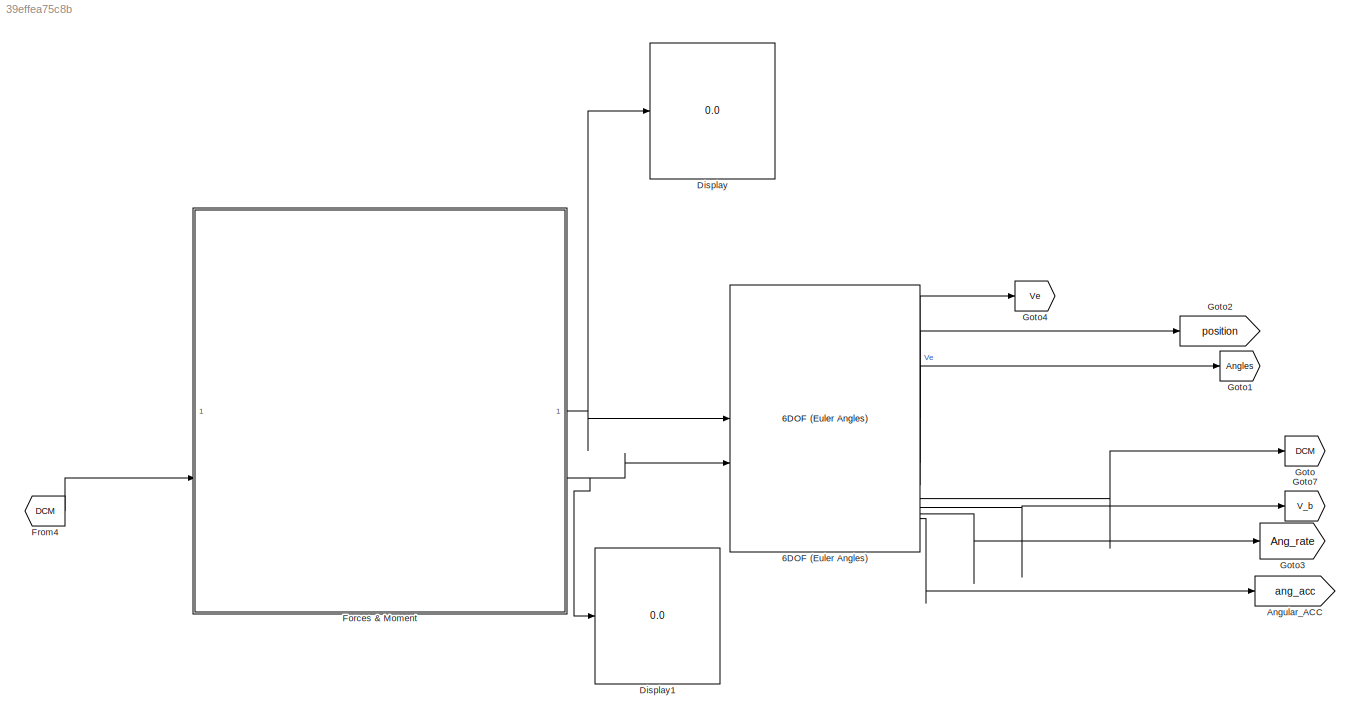
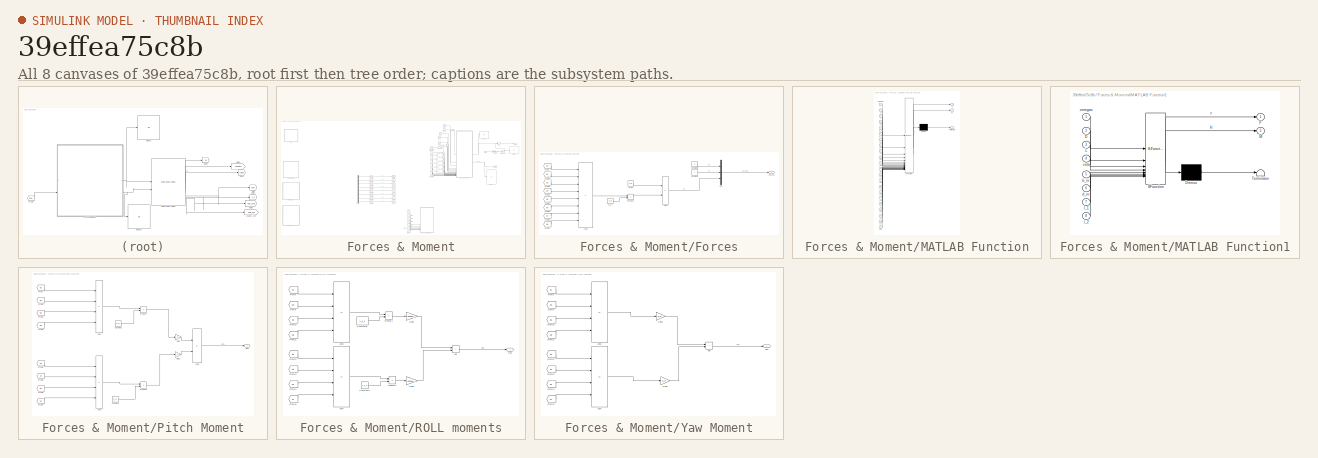
[diagram: thumbnail index - all 8 canvases of the model, root first then tree order]
MODEL slx_39effea75c8b
KIND model
CONFIG AbsTol = auto
CONFIG EnableMultiTasking = off
CONFIG FixedStep = auto
CONFIG MaxStep = auto
CONFIG MinStep = auto
CONFIG RelTol = 1e-3
CONFIG SampleTimeConstraint = Unconstrained
CONFIG SolverName = VariableStepAuto
CONFIG StartTime = 0.0
CONFIG StopTime = 10.0
BLOCK [Reference] 6DOF (Euler Angles)  REF=shared6dof/6DOF (Euler Angles)
  LibrarySourceBlock = aerolib6dof2/6DOF (Euler Angles)
  SourceBlock = shared6dof/6DOF (Euler Angles)
  SourceType = 6DOF EoM (Body Axis)
BLOCK [Goto] Angular_ACC
  GotoTag = ang_acc
  TagVisibility = global
BLOCK [Display] Display
  Decimation = 1
BLOCK [Display] Display1
  Decimation = 1
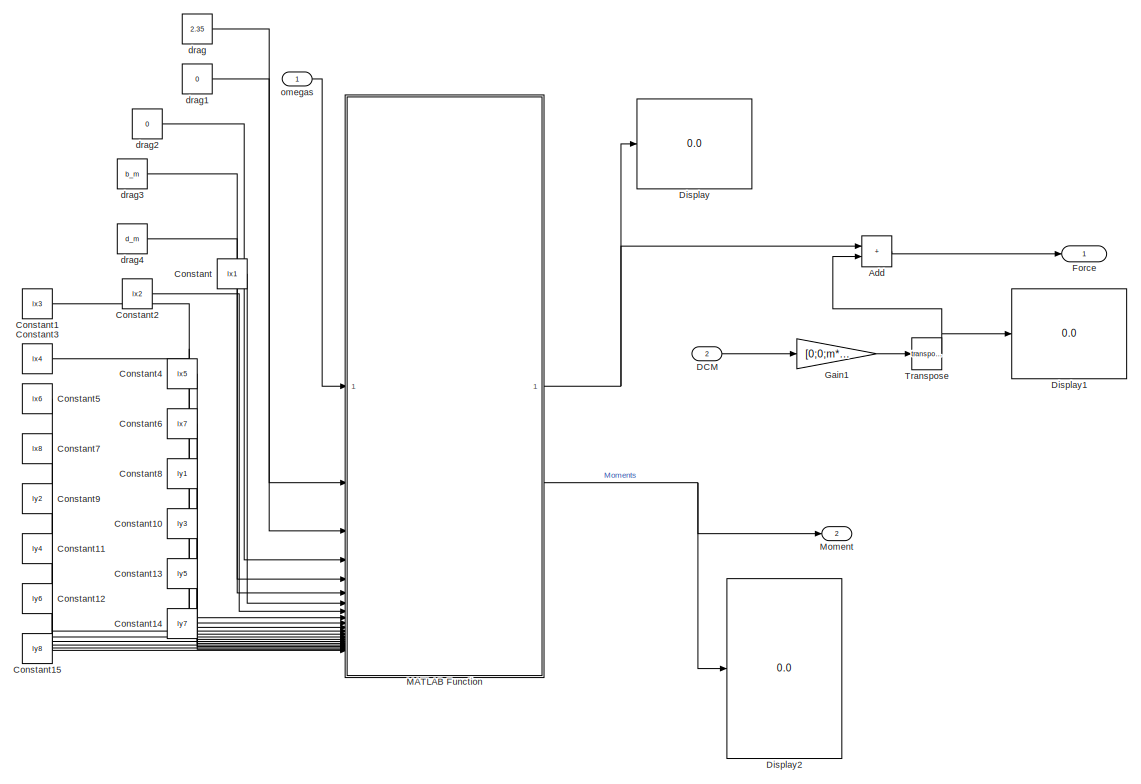
[diagram: Forces & Moment - part 1/4, top right region]
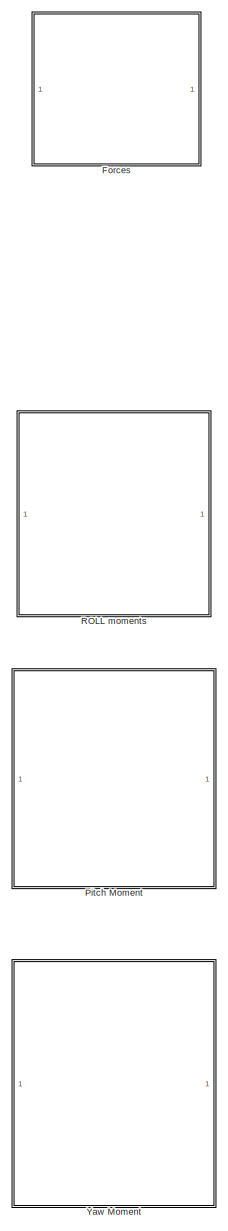
[diagram: Forces & Moment - part 2/4, left side, full height]
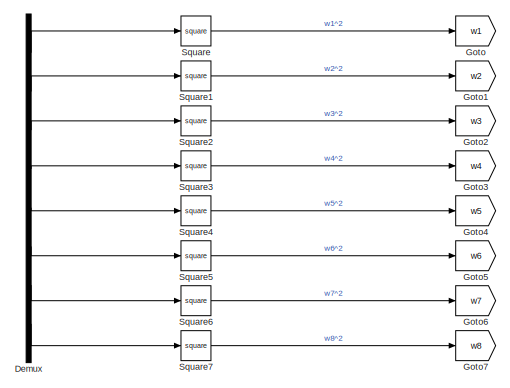
[diagram: Forces & Moment - part 3/4, central region]
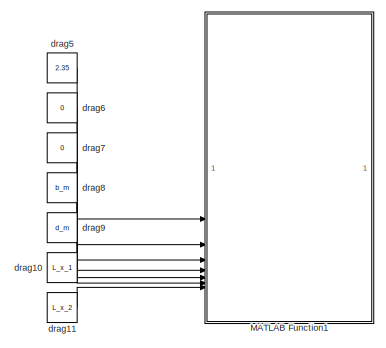
[diagram: Forces & Moment - part 4/4, bottom center region]
BLOCK [SubSystem] Forces & Moment
BLOCK [Sum] Forces & Moment/Add
  IconShape = rectangular
BLOCK [Constant] Forces & Moment/Constant
  Value = lx1
BLOCK [Constant] Forces & Moment/Constant1
  Value = lx3
BLOCK [Constant] Forces & Moment/Constant10
  Value = ly3
BLOCK [Constant] Forces & Moment/Constant11
  Value = ly4
BLOCK [Constant] Forces & Moment/Constant12
  Value = ly6
BLOCK [Constant] Forces & Moment/Constant13
  Value = ly5
BLOCK [Constant] Forces & Moment/Constant14
  Value = ly7
BLOCK [Constant] Forces & Moment/Constant15
  Value = ly8
BLOCK [Constant] Forces & Moment/Constant2
  Value = lx2
BLOCK [Constant] Forces & Moment/Constant3
  Value = lx4
BLOCK [Constant] Forces & Moment/Constant4
  Value = lx5
BLOCK [Constant] Forces & Moment/Constant5
  Value = lx6
BLOCK [Constant] Forces & Moment/Constant6
  Value = lx7
BLOCK [Constant] Forces & Moment/Constant7
  Value = lx8
BLOCK [Constant] Forces & Moment/Constant8
  Value = ly1
BLOCK [Constant] Forces & Moment/Constant9
  Value = ly2
BLOCK [Inport] Forces & Moment/DCM
  Port = 2
BLOCK [Demux] Forces & Moment/Demux
  Commented = on
  Outputs = 8
BLOCK [Display] Forces & Moment/Display
  Decimation = 1
BLOCK [Display] Forces & Moment/Display1
  Decimation = 1
BLOCK [Display] Forces & Moment/Display2
  Decimation = 1
BLOCK [Outport] Forces & Moment/Force
BLOCK [SubSystem] Forces & Moment/Forces
  Commented = on
BLOCK [Sum] Forces & Moment/Forces/Add1
  IconShape = rectangular
  Inputs = ++++++++
BLOCK [Sum] Forces & Moment/Forces/Add2
  IconShape = rectangular
  Inputs = +-
BLOCK [Constant] Forces & Moment/Forces/Constant6
  Value = 0
BLOCK [Constant] Forces & Moment/Forces/Constant7
  Value = 0
BLOCK [Outport] Forces & Moment/Forces/Forces
BLOCK [From] Forces & Moment/Forces/From
  GotoTag = w1
  TagVisibility = global
BLOCK [From] Forces & Moment/Forces/From1
  GotoTag = w2
  TagVisibility = global
BLOCK [From] Forces & Moment/Forces/From2
  GotoTag = w3
  TagVisibility = global
BLOCK [From] Forces & Moment/Forces/From3
  GotoTag = w4
  TagVisibility = global
BLOCK [From] Forces & Moment/Forces/From4
  GotoTag = w5
  TagVisibility = global
BLOCK [From] Forces & Moment/Forces/From5
  GotoTag = w6
  TagVisibility = global
BLOCK [From] Forces & Moment/Forces/From6
  GotoTag = w7
  TagVisibility = global
BLOCK [From] Forces & Moment/Forces/From7
  GotoTag = w8
  TagVisibility = global
BLOCK [Mux] Forces & Moment/Forces/Mux
  DisplayOption = bar
  Inputs = 3
BLOCK [Product] Forces & Moment/Forces/Product
BLOCK [Constant] Forces & Moment/Forces/b_m
  Value = b_m
BLOCK [Constant] Forces & Moment/Forces/drag
  Value = 2.35
BLOCK [Gain] Forces & Moment/Gain1
  Gain = [0;0;m*g]
  Multiplication = Matrix(u*K)
BLOCK [Goto] Forces & Moment/Goto
  Commented = on
  GotoTag = w1
  TagVisibility = global
BLOCK [Goto] Forces & Moment/Goto1
  Commented = on
  GotoTag = w2
  TagVisibility = global
BLOCK [Goto] Forces & Moment/Goto2
  Commented = on
  GotoTag = w3
  TagVisibility = global
BLOCK [Goto] Forces & Moment/Goto3
  Commented = on
  GotoTag = w4
  TagVisibility = global
BLOCK [Goto] Forces & Moment/Goto4
  Commented = on
  GotoTag = w5
  TagVisibility = global
BLOCK [Goto] Forces & Moment/Goto5
  Commented = on
  GotoTag = w6
  TagVisibility = global
BLOCK [Goto] Forces & Moment/Goto6
  Commented = on
  GotoTag = w7
  TagVisibility = global
BLOCK [Goto] Forces & Moment/Goto7
  Commented = on
  GotoTag = w8
  TagVisibility = global
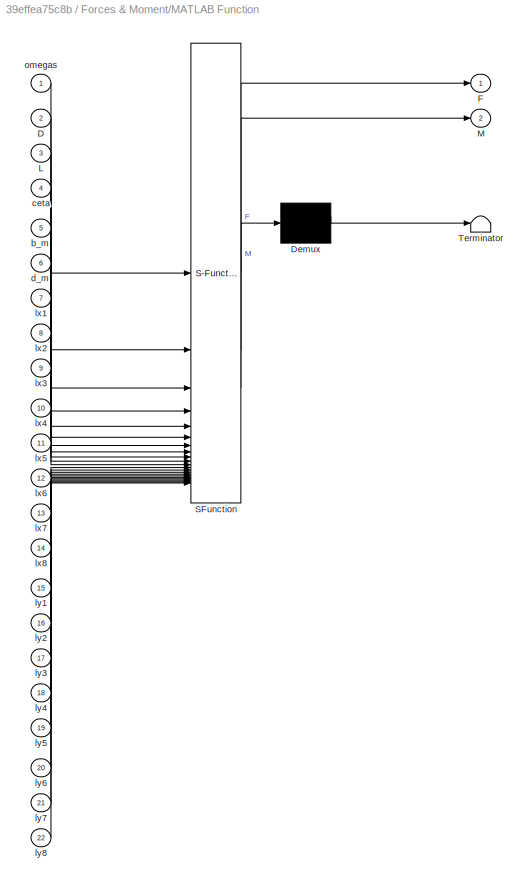
BLOCK [SubSystem] Forces & Moment/MATLAB Function
  ErrorFcn = Stateflow.Translate.translate
  LibrarySourceBlock = simulink/User-Defined\nFunctions/MATLAB Function
  PermitHierarchicalResolution = ExplicitOnly
  SFBlockType = MATLAB Function
  TreatAsAtomicUnit = on
BLOCK [Demux] Forces & Moment/MATLAB Function/ Demux 
  Outputs = 1
BLOCK [S-Function] Forces & Moment/MATLAB Function/ SFunction 
  EnableBusSupport = on
  FunctionName = sf_sfun
  PortCounts = [22 3]
  SFcnIsStateOwnerBlock = off
  SFunctionDeploymentMode = off
  Tag = Stateflow S-Function 4
BLOCK [Terminator] Forces & Moment/MATLAB Function/ Terminator 
BLOCK [Inport] Forces & Moment/MATLAB Function/D
  Port = 2
BLOCK [Outport] Forces & Moment/MATLAB Function/F
BLOCK [Inport] Forces & Moment/MATLAB Function/L
  Port = 3
BLOCK [Outport] Forces & Moment/MATLAB Function/M
  Port = 2
BLOCK [Inport] Forces & Moment/MATLAB Function/b_m
  Port = 5
BLOCK [Inport] Forces & Moment/MATLAB Function/ceta
  Port = 4
BLOCK [Inport] Forces & Moment/MATLAB Function/d_m
  Port = 6
BLOCK [Inport] Forces & Moment/MATLAB Function/lx1
  Port = 7
BLOCK [Inport] Forces & Moment/MATLAB Function/lx2
  Port = 8
BLOCK [Inport] Forces & Moment/MATLAB Function/lx3
  Port = 9
BLOCK [Inport] Forces & Moment/MATLAB Function/lx4
  Port = 10
BLOCK [Inport] Forces & Moment/MATLAB Function/lx5
  Port = 11
BLOCK [Inport] Forces & Moment/MATLAB Function/lx6
  Port = 12
BLOCK [Inport] Forces & Moment/MATLAB Function/lx7
  Port = 13
BLOCK [Inport] Forces & Moment/MATLAB Function/lx8
  Port = 14
BLOCK [Inport] Forces & Moment/MATLAB Function/ly1
  Port = 15
BLOCK [Inport] Forces & Moment/MATLAB Function/ly2
  Port = 16
BLOCK [Inport] Forces & Moment/MATLAB Function/ly3
  Port = 17
BLOCK [Inport] Forces & Moment/MATLAB Function/ly4
  Port = 18
BLOCK [Inport] Forces & Moment/MATLAB Function/ly5
  Port = 19
BLOCK [Inport] Forces & Moment/MATLAB Function/ly6
  Port = 20
BLOCK [Inport] Forces & Moment/MATLAB Function/ly7
  Port = 21
BLOCK [Inport] Forces & Moment/MATLAB Function/ly8
  Port = 22
BLOCK [Inport] Forces & Moment/MATLAB Function/omegas
BLOCK [SubSystem] Forces & Moment/MATLAB Function1
  Commented = on
  ErrorFcn = Stateflow.Translate.translate
  LibrarySourceBlock = simulink/User-Defined\nFunctions/MATLAB Function
  PermitHierarchicalResolution = ExplicitOnly
  SFBlockType = MATLAB Function
  TreatAsAtomicUnit = on
BLOCK [Demux] Forces & Moment/MATLAB Function1/ Demux 
  Outputs = 1
BLOCK [S-Function] Forces & Moment/MATLAB Function1/ SFunction 
  EnableBusSupport = off
  FunctionName = sf_sfun
  PortCounts = [8 3]
  SFcnIsStateOwnerBlock = off
  SFunctionDeploymentMode = off
  Tag = Stateflow S-Function 39
BLOCK [Terminator] Forces & Moment/MATLAB Function1/ Terminator 
BLOCK [Inport] Forces & Moment/MATLAB Function1/D
  Port = 2
BLOCK [Outport] Forces & Moment/MATLAB Function1/F
BLOCK [Inport] Forces & Moment/MATLAB Function1/L
  Port = 3
BLOCK [Outport] Forces & Moment/MATLAB Function1/M
  Port = 2
BLOCK [Inport] Forces & Moment/MATLAB Function1/b_m
  Port = 5
BLOCK [Inport] Forces & Moment/MATLAB Function1/ceta
  Port = 4
BLOCK [Inport] Forces & Moment/MATLAB Function1/d_m
  Port = 6
BLOCK [Inport] Forces & Moment/MATLAB Function1/l_1
  Port = 7
BLOCK [Inport] Forces & Moment/MATLAB Function1/l_2
  Port = 8
BLOCK [Inport] Forces & Moment/MATLAB Function1/omegas
BLOCK [Outport] Forces & Moment/Moment
  Port = 2
BLOCK [SubSystem] Forces & Moment/Pitch Moment
  Commented = on
BLOCK [Sum] Forces & Moment/Pitch Moment/Add1
  IconShape = rectangular
  Inputs = +-+-
BLOCK [Sum] Forces & Moment/Pitch Moment/Add2
  IconShape = rectangular
  Inputs = +-+-
BLOCK [Sum] Forces & Moment/Pitch Moment/Add3
  IconShape = rectangular
  Inputs = +-
BLOCK [Constant] Forces & Moment/Pitch Moment/Constant1
  Value = b_m
BLOCK [Constant] Forces & Moment/Pitch Moment/Constant2
  Value = b_m
BLOCK [From] Forces & Moment/Pitch Moment/From
  GotoTag = w1
  TagVisibility = global
BLOCK [From] Forces & Moment/Pitch Moment/From1
  GotoTag = w3
  TagVisibility = global
BLOCK [From] Forces & Moment/Pitch Moment/From2
  GotoTag = w6
  TagVisibility = global
BLOCK [From] Forces & Moment/Pitch Moment/From3
  GotoTag = w8
  TagVisibility = global
BLOCK [From] Forces & Moment/Pitch Moment/From4
  GotoTag = w2
  TagVisibility = global
BLOCK [From] Forces & Moment/Pitch Moment/From5
  GotoTag = w4
  TagVisibility = global
BLOCK [From] Forces & Moment/Pitch Moment/From6
  GotoTag = w5
  TagVisibility = global
BLOCK [From] Forces & Moment/Pitch Moment/From7
  GotoTag = w7
  TagVisibility = global
BLOCK [Gain] Forces & Moment/Pitch Moment/Gain
  Gain = L_x_1
BLOCK [Gain] Forces & Moment/Pitch Moment/Gain1
  Gain = L_x_2
BLOCK [Product] Forces & Moment/Pitch Moment/Product
BLOCK [Product] Forces & Moment/Pitch Moment/Product1
BLOCK [Outport] Forces & Moment/Pitch Moment/pitch
BLOCK [SubSystem] Forces & Moment/ROLL moments
  Commented = on
BLOCK [Sum] Forces & Moment/ROLL moments/Add
  IconShape = rectangular
BLOCK [Sum] Forces & Moment/ROLL moments/Add3
  IconShape = rectangular
  Inputs = --++
BLOCK [Sum] Forces & Moment/ROLL moments/Add4
  IconShape = rectangular
  Inputs = --++
BLOCK [Constant] Forces & Moment/ROLL moments/Constant8
  Value = L_x_1
BLOCK [Constant] Forces & Moment/ROLL moments/Constant9
  Value = L_x_2
BLOCK [From] Forces & Moment/ROLL moments/From10
  GotoTag = w6
  TagVisibility = global
BLOCK [From] Forces & Moment/ROLL moments/From11
  GotoTag = w8
  TagVisibility = global
BLOCK [From] Forces & Moment/ROLL moments/From12
  GotoTag = w2
  TagVisibility = global
BLOCK [From] Forces & Moment/ROLL moments/From13
  GotoTag = w4
  TagVisibility = global
BLOCK [From] Forces & Moment/ROLL moments/From14
  GotoTag = w5
  TagVisibility = global
BLOCK [From] Forces & Moment/ROLL moments/From15
  GotoTag = w7
  TagVisibility = global
BLOCK [From] Forces & Moment/ROLL moments/From8
  GotoTag = w1
  TagVisibility = global
BLOCK [From] Forces & Moment/ROLL moments/From9
  GotoTag = w3
  TagVisibility = global
BLOCK [Gain] Forces & Moment/ROLL moments/Gain1
  Gain = 0.0016456
BLOCK [Gain] Forces & Moment/ROLL moments/Gain2
  Gain = 0.0016456
BLOCK [Product] Forces & Moment/ROLL moments/Product1
BLOCK [Product] Forces & Moment/ROLL moments/Product2
BLOCK [Outport] Forces & Moment/ROLL moments/Roll
BLOCK [Math] Forces & Moment/Square
  Commented = on
  Operator = square
BLOCK [Math] Forces & Moment/Square1
  Commented = on
  Operator = square
BLOCK [Math] Forces & Moment/Square2
  Commented = on
  Operator = square
BLOCK [Math] Forces & Moment/Square3
  Commented = on
  Operator = square
BLOCK [Math] Forces & Moment/Square4
  Commented = on
  Operator = square
BLOCK [Math] Forces & Moment/Square5
  Commented = on
  Operator = square
BLOCK [Math] Forces & Moment/Square6
  Commented = on
  Operator = square
BLOCK [Math] Forces & Moment/Square7
  Commented = on
  Operator = square
BLOCK [Math] Forces & Moment/Transpose
  Operator = transpose
BLOCK [SubSystem] Forces & Moment/Yaw Moment
  Commented = on
BLOCK [Sum] Forces & Moment/Yaw Moment/Add
  IconShape = rectangular
BLOCK [Sum] Forces & Moment/Yaw Moment/Add3
  IconShape = rectangular
  Inputs = +--+
BLOCK [Sum] Forces & Moment/Yaw Moment/Add4
  IconShape = rectangular
  Inputs = +--+
BLOCK [From] Forces & Moment/Yaw Moment/From10
  GotoTag = w6
  TagVisibility = global
BLOCK [From] Forces & Moment/Yaw Moment/From11
  GotoTag = w8
  TagVisibility = global
BLOCK [From] Forces & Moment/Yaw Moment/From12
  GotoTag = w2
  TagVisibility = global
BLOCK [From] Forces & Moment/Yaw Moment/From13
  GotoTag = w4
  TagVisibility = global
BLOCK [From] Forces & Moment/Yaw Moment/From14
  GotoTag = w5
  TagVisibility = global
BLOCK [From] Forces & Moment/Yaw Moment/From15
  GotoTag = w7
  TagVisibility = global
BLOCK [From] Forces & Moment/Yaw Moment/From8
  GotoTag = w1
  TagVisibility = global
BLOCK [From] Forces & Moment/Yaw Moment/From9
  GotoTag = w3
  TagVisibility = global
BLOCK [Gain] Forces & Moment/Yaw Moment/Gain1
  Gain = d_m
BLOCK [Gain] Forces & Moment/Yaw Moment/Gain2
  Gain = d_m
BLOCK [Outport] Forces & Moment/Yaw Moment/Yaw
BLOCK [Constant] Forces & Moment/drag
  Value = 2.35
BLOCK [Constant] Forces & Moment/drag1
  Value = 0
BLOCK [Constant] Forces & Moment/drag10
  Commented = on
  Value = L_x_1
BLOCK [Constant] Forces & Moment/drag11
  Commented = on
  Value = L_x_2
BLOCK [Constant] Forces & Moment/drag2
  Value = 0
BLOCK [Constant] Forces & Moment/drag3
  Value = b_m
BLOCK [Constant] Forces & Moment/drag4
  Value = d_m
BLOCK [Constant] Forces & Moment/drag5
  Commented = on
  Value = 2.35
BLOCK [Constant] Forces & Moment/drag6
  Commented = on
  Value = 0
BLOCK [Constant] Forces & Moment/drag7
  Commented = on
  Value = 0
BLOCK [Constant] Forces & Moment/drag8
  Commented = on
  Value = b_m
BLOCK [Constant] Forces & Moment/drag9
  Commented = on
  Value = d_m
BLOCK [Inport] Forces & Moment/omegas
BLOCK [From] From4
  GotoTag = DCM
  TagVisibility = global
BLOCK [Goto] Goto
  GotoTag = DCM
  TagVisibility = global
BLOCK [Goto] Goto1
  GotoTag = Angles
  TagVisibility = global
BLOCK [Goto] Goto2
  GotoTag = position
  TagVisibility = global
BLOCK [Goto] Goto3
  GotoTag = Ang_rate
  TagVisibility = global
BLOCK [Goto] Goto4
  GotoTag = Ve
  TagVisibility = global
BLOCK [Goto] Goto7
  GotoTag = V_b
  TagVisibility = global
LINE 6DOF (Euler Angles):1 -> Goto4:1
LINE 6DOF (Euler Angles):2 -> Goto2:1
LINE 6DOF (Euler Angles):3 -> Goto1:1
LINE 6DOF (Euler Angles):4 -> Goto:1
LINE 6DOF (Euler Angles):5 -> Goto7:1
LINE 6DOF (Euler Angles):6 -> Goto3:1
LINE 6DOF (Euler Angles):7 -> Angular_ACC:1
LINE Forces & Moment/Add:1 -> Forces & Moment/Force:1
LINE Forces & Moment/Constant10:1 -> Forces & Moment/MATLAB Function:17
LINE Forces & Moment/Constant11:1 -> Forces & Moment/MATLAB Function:18
LINE Forces & Moment/Constant12:1 -> Forces & Moment/MATLAB Function:20
LINE Forces & Moment/Constant13:1 -> Forces & Moment/MATLAB Function:19
LINE Forces & Moment/Constant14:1 -> Forces & Moment/MATLAB Function:21
LINE Forces & Moment/Constant15:1 -> Forces & Moment/MATLAB Function:22
LINE Forces & Moment/Constant1:1 -> Forces & Moment/MATLAB Function:9
LINE Forces & Moment/Constant2:1 -> Forces & Moment/MATLAB Function:8
LINE Forces & Moment/Constant3:1 -> Forces & Moment/MATLAB Function:10
LINE Forces & Moment/Constant4:1 -> Forces & Moment/MATLAB Function:11
LINE Forces & Moment/Constant5:1 -> Forces & Moment/MATLAB Function:12
LINE Forces & Moment/Constant6:1 -> Forces & Moment/MATLAB Function:13
LINE Forces & Moment/Constant7:1 -> Forces & Moment/MATLAB Function:14
LINE Forces & Moment/Constant8:1 -> Forces & Moment/MATLAB Function:15
LINE Forces & Moment/Constant9:1 -> Forces & Moment/MATLAB Function:16
LINE Forces & Moment/Constant:1 -> Forces & Moment/MATLAB Function:7
LINE Forces & Moment/DCM:1 -> Forces & Moment/Gain1:1
LINE Forces & Moment/Demux:1 -> Forces & Moment/Square:1
LINE Forces & Moment/Demux:2 -> Forces & Moment/Square1:1
LINE Forces & Moment/Demux:3 -> Forces & Moment/Square2:1
LINE Forces & Moment/Demux:4 -> Forces & Moment/Square3:1
LINE Forces & Moment/Demux:5 -> Forces & Moment/Square4:1
LINE Forces & Moment/Demux:6 -> Forces & Moment/Square5:1
LINE Forces & Moment/Demux:7 -> Forces & Moment/Square6:1
LINE Forces & Moment/Demux:8 -> Forces & Moment/Square7:1
LINE Forces & Moment/Forces/Add1:1 -> Forces & Moment/Forces/Product:1
LINE Forces & Moment/Forces/Add2:1 -> Forces & Moment/Forces/Mux:3
LINE Forces & Moment/Forces/Constant6:1 -> Forces & Moment/Forces/Mux:1
LINE Forces & Moment/Forces/Constant7:1 -> Forces & Moment/Forces/Mux:2
LINE Forces & Moment/Forces/From1:1 -> Forces & Moment/Forces/Add1:2
LINE Forces & Moment/Forces/From2:1 -> Forces & Moment/Forces/Add1:3
LINE Forces & Moment/Forces/From3:1 -> Forces & Moment/Forces/Add1:4
LINE Forces & Moment/Forces/From4:1 -> Forces & Moment/Forces/Add1:5
LINE Forces & Moment/Forces/From5:1 -> Forces & Moment/Forces/Add1:6
LINE Forces & Moment/Forces/From6:1 -> Forces & Moment/Forces/Add1:7
LINE Forces & Moment/Forces/From7:1 -> Forces & Moment/Forces/Add1:8
LINE Forces & Moment/Forces/From:1 -> Forces & Moment/Forces/Add1:1
LINE Forces & Moment/Forces/Mux:1 -> Forces & Moment/Forces/Forces:1
LINE Forces & Moment/Forces/Product:1 -> Forces & Moment/Forces/Add2:2
LINE Forces & Moment/Forces/b_m:1 -> Forces & Moment/Forces/Product:2
LINE Forces & Moment/Forces/drag:1 -> Forces & Moment/Forces/Add2:1
LINE Forces & Moment/Gain1:1 -> Forces & Moment/Transpose:1
NET Forces & Moment/MATLAB Function:1 -> Forces & Moment/Add:1, Forces & Moment/Display:1
NET Forces & Moment/MATLAB Function:2 -> Forces & Moment/Display2:1, Forces & Moment/Moment:1
LINE Forces & Moment/Pitch Moment/Add1:1 -> Forces & Moment/Pitch Moment/Product:1
LINE Forces & Moment/Pitch Moment/Add2:1 -> Forces & Moment/Pitch Moment/Product1:1
LINE Forces & Moment/Pitch Moment/Add3:1 -> Forces & Moment/Pitch Moment/pitch:1
LINE Forces & Moment/Pitch Moment/Constant1:1 -> Forces & Moment/Pitch Moment/Product:2
LINE Forces & Moment/Pitch Moment/Constant2:1 -> Forces & Moment/Pitch Moment/Product1:2
LINE Forces & Moment/Pitch Moment/From1:1 -> Forces & Moment/Pitch Moment/Add1:2
LINE Forces & Moment/Pitch Moment/From2:1 -> Forces & Moment/Pitch Moment/Add1:3
LINE Forces & Moment/Pitch Moment/From3:1 -> Forces & Moment/Pitch Moment/Add1:4
LINE Forces & Moment/Pitch Moment/From4:1 -> Forces & Moment/Pitch Moment/Add2:1
LINE Forces & Moment/Pitch Moment/From5:1 -> Forces & Moment/Pitch Moment/Add2:2
LINE Forces & Moment/Pitch Moment/From6:1 -> Forces & Moment/Pitch Moment/Add2:3
LINE Forces & Moment/Pitch Moment/From7:1 -> Forces & Moment/Pitch Moment/Add2:4
LINE Forces & Moment/Pitch Moment/From:1 -> Forces & Moment/Pitch Moment/Add1:1
LINE Forces & Moment/Pitch Moment/Gain1:1 -> Forces & Moment/Pitch Moment/Add3:2
LINE Forces & Moment/Pitch Moment/Gain:1 -> Forces & Moment/Pitch Moment/Add3:1
LINE Forces & Moment/Pitch Moment/Product1:1 -> Forces & Moment/Pitch Moment/Gain1:1
LINE Forces & Moment/Pitch Moment/Product:1 -> Forces & Moment/Pitch Moment/Gain:1
LINE Forces & Moment/ROLL moments/Add3:1 -> Forces & Moment/ROLL moments/Product1:1
LINE Forces & Moment/ROLL moments/Add4:1 -> Forces & Moment/ROLL moments/Product2:1
LINE Forces & Moment/ROLL moments/Add:1 -> Forces & Moment/ROLL moments/Roll:1
LINE Forces & Moment/ROLL moments/Constant8:1 -> Forces & Moment/ROLL moments/Product1:2
LINE Forces & Moment/ROLL moments/Constant9:1 -> Forces & Moment/ROLL moments/Product2:2
LINE Forces & Moment/ROLL moments/From10:1 -> Forces & Moment/ROLL moments/Add3:3
LINE Forces & Moment/ROLL moments/From11:1 -> Forces & Moment/ROLL moments/Add3:4
LINE Forces & Moment/ROLL moments/From12:1 -> Forces & Moment/ROLL moments/Add4:1
LINE Forces & Moment/ROLL moments/From13:1 -> Forces & Moment/ROLL moments/Add4:2
LINE Forces & Moment/ROLL moments/From14:1 -> Forces & Moment/ROLL moments/Add4:3
LINE Forces & Moment/ROLL moments/From15:1 -> Forces & Moment/ROLL moments/Add4:4
LINE Forces & Moment/ROLL moments/From8:1 -> Forces & Moment/ROLL moments/Add3:1
LINE Forces & Moment/ROLL moments/From9:1 -> Forces & Moment/ROLL moments/Add3:2
LINE Forces & Moment/ROLL moments/Gain1:1 -> Forces & Moment/ROLL moments/Add:1
LINE Forces & Moment/ROLL moments/Gain2:1 -> Forces & Moment/ROLL moments/Add:2
LINE Forces & Moment/ROLL moments/Product1:1 -> Forces & Moment/ROLL moments/Gain1:1
LINE Forces & Moment/ROLL moments/Product2:1 -> Forces & Moment/ROLL moments/Gain2:1
LINE Forces & Moment/Square1:1 -> Forces & Moment/Goto1:1
LINE Forces & Moment/Square2:1 -> Forces & Moment/Goto2:1
LINE Forces & Moment/Square3:1 -> Forces & Moment/Goto3:1
LINE Forces & Moment/Square4:1 -> Forces & Moment/Goto4:1
LINE Forces & Moment/Square5:1 -> Forces & Moment/Goto5:1
LINE Forces & Moment/Square6:1 -> Forces & Moment/Goto6:1
LINE Forces & Moment/Square7:1 -> Forces & Moment/Goto7:1
LINE Forces & Moment/Square:1 -> Forces & Moment/Goto:1
NET Forces & Moment/Transpose:1 -> Forces & Moment/Add:2, Forces & Moment/Display1:1
LINE Forces & Moment/Yaw Moment/Add3:1 -> Forces & Moment/Yaw Moment/Gain1:1
LINE Forces & Moment/Yaw Moment/Add4:1 -> Forces & Moment/Yaw Moment/Gain2:1
LINE Forces & Moment/Yaw Moment/Add:1 -> Forces & Moment/Yaw Moment/Yaw:1
LINE Forces & Moment/Yaw Moment/From10:1 -> Forces & Moment/Yaw Moment/Add3:3
LINE Forces & Moment/Yaw Moment/From11:1 -> Forces & Moment/Yaw Moment/Add3:4
LINE Forces & Moment/Yaw Moment/From12:1 -> Forces & Moment/Yaw Moment/Add4:1
LINE Forces & Moment/Yaw Moment/From13:1 -> Forces & Moment/Yaw Moment/Add4:2
LINE Forces & Moment/Yaw Moment/From14:1 -> Forces & Moment/Yaw Moment/Add4:3
LINE Forces & Moment/Yaw Moment/From15:1 -> Forces & Moment/Yaw Moment/Add4:4
LINE Forces & Moment/Yaw Moment/From8:1 -> Forces & Moment/Yaw Moment/Add3:1
LINE Forces & Moment/Yaw Moment/From9:1 -> Forces & Moment/Yaw Moment/Add3:2
LINE Forces & Moment/Yaw Moment/Gain1:1 -> Forces & Moment/Yaw Moment/Add:1
LINE Forces & Moment/Yaw Moment/Gain2:1 -> Forces & Moment/Yaw Moment/Add:2
LINE Forces & Moment/drag10:1 -> Forces & Moment/MATLAB Function1:7
LINE Forces & Moment/drag11:1 -> Forces & Moment/MATLAB Function1:8
LINE Forces & Moment/drag1:1 -> Forces & Moment/MATLAB Function:3
LINE Forces & Moment/drag2:1 -> Forces & Moment/MATLAB Function:4
LINE Forces & Moment/drag3:1 -> Forces & Moment/MATLAB Function:5
LINE Forces & Moment/drag4:1 -> Forces & Moment/MATLAB Function:6
LINE Forces & Moment/drag5:1 -> Forces & Moment/MATLAB Function1:2
LINE Forces & Moment/drag6:1 -> Forces & Moment/MATLAB Function1:3
LINE Forces & Moment/drag7:1 -> Forces & Moment/MATLAB Function1:4
LINE Forces & Moment/drag8:1 -> Forces & Moment/MATLAB Function1:5
LINE Forces & Moment/drag9:1 -> Forces & Moment/MATLAB Function1:6
LINE Forces & Moment/drag:1 -> Forces & Moment/MATLAB Function:2
LINE Forces & Moment/omegas:1 -> Forces & Moment/MATLAB Function:1
NET Forces & Moment:1 -> 6DOF (Euler Angles):1, Display:1
NET Forces & Moment:2 -> 6DOF (Euler Angles):2, Display1:1
LINE From4:1 -> Forces & Moment:2
note: NET lines group one-source signal fan-out (src -> all destinations, sorted); 1:1 wires keep LINE
CHART Forces & Moment/MATLAB Function states=1 transitions=1
  STATE_LABEL 'eML_blk_kernel()'
  STATE_LABEL 'SCRIPT:\nfunction [F,M] = fcn(omegas,D,L,ceta, b_m,d_m,lx1,lx2, lx3, lx4, lx5, lx6, lx7, lx8, ly1, ly2, ly3, ly4, ly5, ly6, ly7, ly8)\nw1=omegas(1);\nw2=omegas(2);\nw3=omegas(3);\nw4=omegas(4);\nw5=omegas(5);\nw6=omegas(6);\nw7=omegas(7);\nw8=omegas(8);\nF_F_z=b_m*(w1^2+w2^2+w6^2+w5^2)+b_m*(w8^2+w7^2+w4^2+w3^2);\n\nFx=0;\nFy=0;                            % Aerodynamic force needed \nFz=D-F_F_z;                 ...<+328ch>'
CHART Forces & Moment/MATLAB Function1 states=1 transitions=1
  STATE_LABEL 'eML_blk_kernel()'
  STATE_LABEL 'SCRIPT:\nfunction [F,M] = fcn(omegas,D,L,ceta, b_m,d_m,l_1,l_2)\nw1=omegas(1);\nw2=omegas(2);\nw3=omegas(3);\nw4=omegas(4);\nw5=omegas(5);\nw6=omegas(6);\nw7=omegas(7);\nw8=omegas(8);\nF_F_z=b_m*(w1^2+w2^2+w6^2+w5^2)+b_m*(w8^2+w7^2+w4^2+w3^2);\n\nFx=0;\nFy=0;                            % Aerodynamic force needed \nFz=D-F_F_z;                        % Aerodynamic force needed \nL_roll=(b_m*l_1*(-w1^2-w3^2+w6^2+w8...<+225ch>'
CHART  states=0 transitions=0
CHART  states=0 transitions=0
